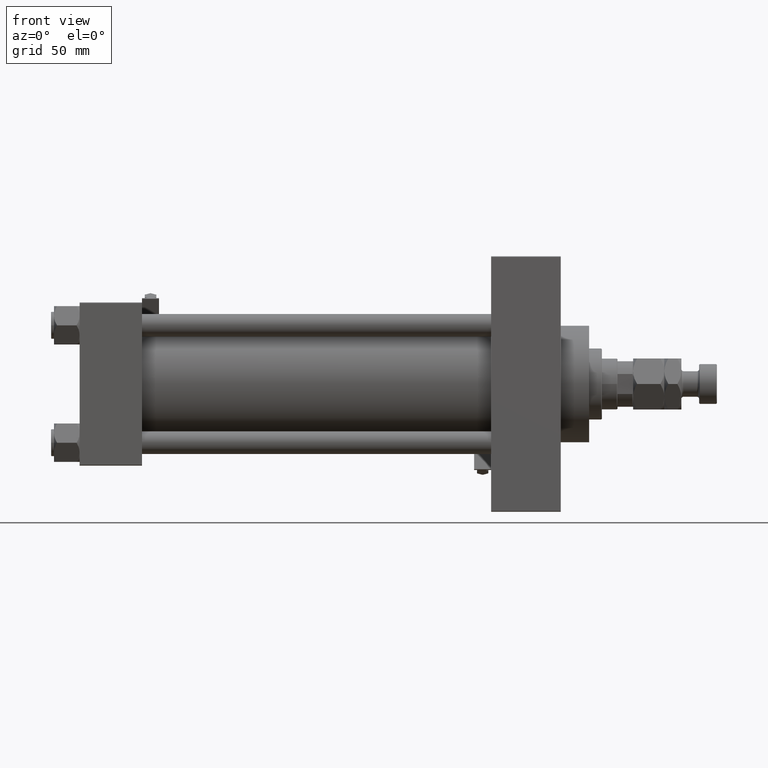
[diagram: clean part render]
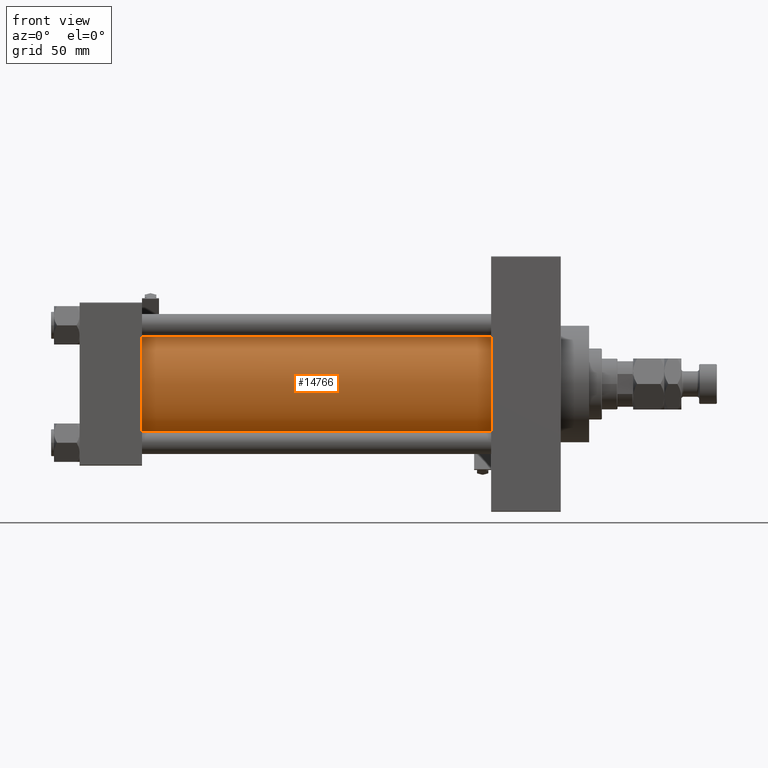
[diagram: same view with one face highlighted and labeled with its STEP entity id]
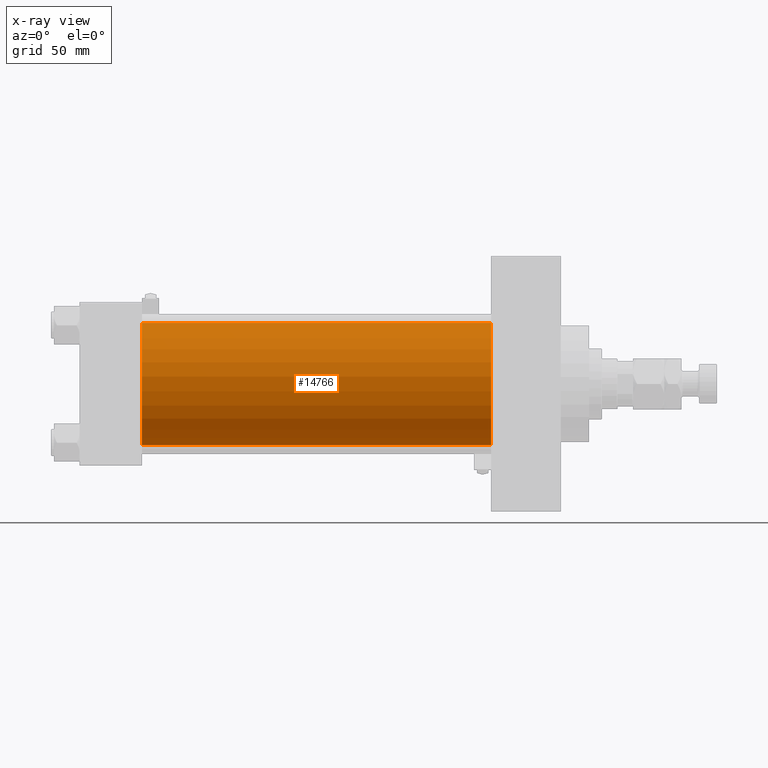
[diagram: x-ray of the same camera — body ghosted, the highlighted face saturated]
A machine part, front view. The second image highlights one B-rep face of the part: STEP entity #14766.
The next image is the same camera in x-ray: the body ghosted, the highlighted face saturated — about 0% of this face is hidden behind the body in this view.
In plain terms, the highlighted cylindrical surface (partial cylindrical patch) has radius 43 mm, axis along (-1, -0, -0).
Its self-contained STEP definition (entity closure, byte-faithful):
#634 = CARTESIAN_POINT ( 'NONE',  ( 290.0000000000000000, -2.602085213965210642E-15, 43.00000000000000000 ) ) ;
#2765 = EDGE_LOOP ( 'NONE', ( #30939, #7135, #25118, #28225 ) ) ;
#2970 = FACE_OUTER_BOUND ( 'NONE', #2765, .T. ) ;
#4223 = VECTOR ( 'NONE', #22375, 1000.000000000000000 ) ;
#5803 = LINE ( 'NONE', #38183, #4223 ) ;
#6757 = CARTESIAN_POINT ( 'NONE',  ( 43.99999999999998579, 2.663896022368408223E-15, -43.00000000000000000 ) ) ;
#7135 = ORIENTED_EDGE ( 'NONE', *, *, #17663, .F. ) ;
#7285 = DIRECTION ( 'NONE',  ( 0.000000000000000000, 0.000000000000000000, 1.000000000000000000 ) ) ;
#10377 = CIRCLE ( 'NONE', #22611, 43.00000000000000000 ) ;
#10506 = VERTEX_POINT ( 'NONE', #16497 ) ;
#12169 = LINE ( 'NONE', #24160, #42142 ) ;
#13123 = CARTESIAN_POINT ( 'NONE',  ( 43.99999999999998579, -2.602085213965210642E-15, 0.000000000000000000 ) ) ;
#13539 = EDGE_CURVE ( 'NONE', #15119, #24290, #12169, .T. ) ;
#13621 = DIRECTION ( 'NONE',  ( 0.000000000000000000, 0.000000000000000000, 1.000000000000000000 ) ) ;
#13992 = AXIS2_PLACEMENT_3D ( 'NONE', #50258, #38998, #35179 ) ;
#14187 = CYLINDRICAL_SURFACE ( 'NONE', #30789, 43.00000000000000000 ) ;
#14766 = ADVANCED_FACE ( 'NONE', ( #2970 ), #14187, .T. ) ;
#15119 = VERTEX_POINT ( 'NONE', #46404 ) ;
#16497 = CARTESIAN_POINT ( 'NONE',  ( 43.99999999999998579, -2.602085213965210642E-15, 43.00000000000000000 ) ) ;
#17663 = EDGE_CURVE ( 'NONE', #43402, #15119, #43317, .T. ) ;
#18738 = EDGE_CURVE ( 'NONE', #43402, #10506, #5803, .T. ) ;
#22375 = DIRECTION ( 'NONE',  ( -1.000000000000000000, -0.000000000000000000, -0.000000000000000000 ) ) ;
#22611 = AXIS2_PLACEMENT_3D ( 'NONE', #13123, #32778, #13621 ) ;
#24160 = CARTESIAN_POINT ( 'NONE',  ( 290.0000000000000000, 2.663896022368408223E-15, -43.00000000000000000 ) ) ;
#24290 = VERTEX_POINT ( 'NONE', #6757 ) ;
#25118 = ORIENTED_EDGE ( 'NONE', *, *, #18738, .T. ) ;
#28225 = ORIENTED_EDGE ( 'NONE', *, *, #44890, .T. ) ;
#30789 = AXIS2_PLACEMENT_3D ( 'NONE', #34101, #34346, #7285 ) ;
#30939 = ORIENTED_EDGE ( 'NONE', *, *, #13539, .F. ) ;
#32778 = DIRECTION ( 'NONE',  ( 1.000000000000000000, -0.000000000000000000, 0.000000000000000000 ) ) ;
#34101 = CARTESIAN_POINT ( 'NONE',  ( 290.0000000000000000, -2.602085213965210642E-15, 0.000000000000000000 ) ) ;
#34346 = DIRECTION ( 'NONE',  ( -1.000000000000000000, -0.000000000000000000, -0.000000000000000000 ) ) ;
#35179 = DIRECTION ( 'NONE',  ( 0.000000000000000000, 0.000000000000000000, -1.000000000000000000 ) ) ;
#38183 = CARTESIAN_POINT ( 'NONE',  ( 290.0000000000000000, -2.602085213965210642E-15, 43.00000000000000000 ) ) ;
#38998 = DIRECTION ( 'NONE',  ( 1.000000000000000000, 0.000000000000000000, 0.000000000000000000 ) ) ;
#42142 = VECTOR ( 'NONE', #43047, 1000.000000000000000 ) ;
#43047 = DIRECTION ( 'NONE',  ( -1.000000000000000000, -0.000000000000000000, -0.000000000000000000 ) ) ;
#43317 = CIRCLE ( 'NONE', #13992, 43.00000000000000000 ) ;
#43402 = VERTEX_POINT ( 'NONE', #634 ) ;
#44890 = EDGE_CURVE ( 'NONE', #10506, #24290, #10377, .T. ) ;
#46404 = CARTESIAN_POINT ( 'NONE',  ( 290.0000000000000000, 2.663896022368408223E-15, -43.00000000000000000 ) ) ;
#50258 = CARTESIAN_POINT ( 'NONE',  ( 290.0000000000000000, -2.602085213965210642E-15, 0.000000000000000000 ) ) ;